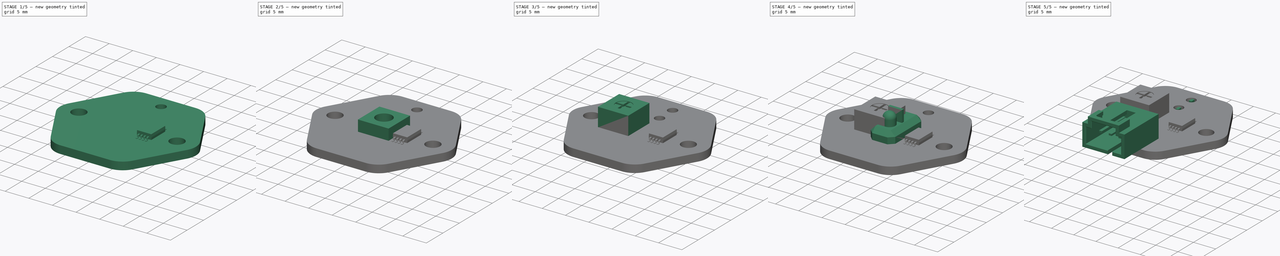
[diagram: build sequence overview — one tinted view per stage of 5, left to right]
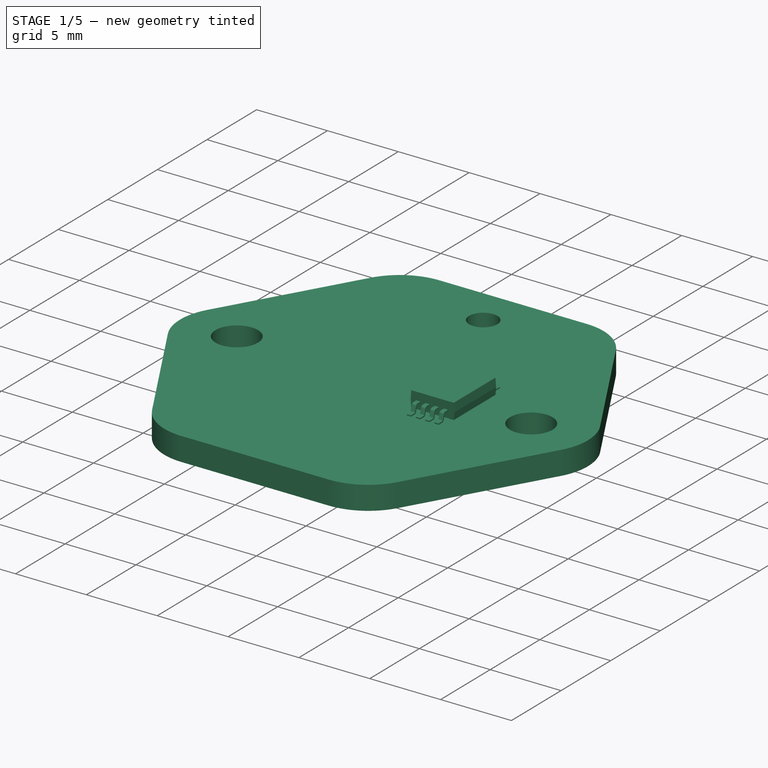
[diagram: stage 1 of 5 — iso view after this stage's code; geometry added in this stage tinted green]
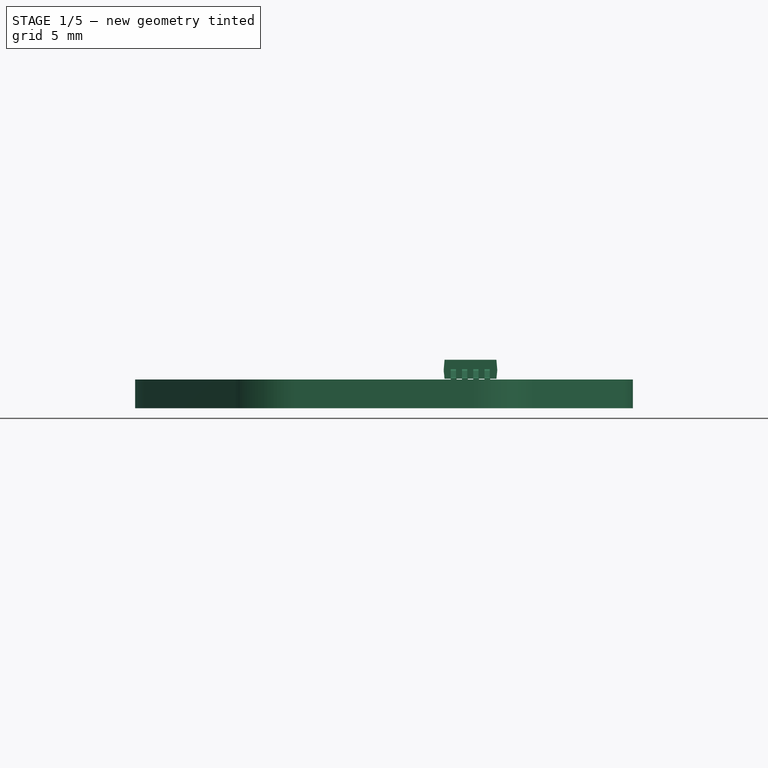
[diagram: stage 1 of 5 — front view after this stage's code; geometry added in this stage tinted green]
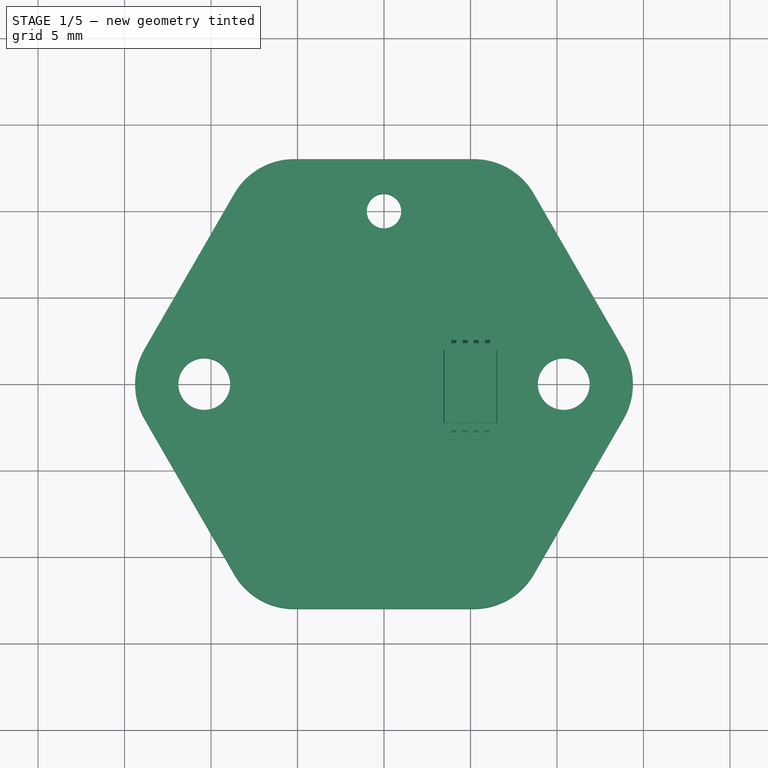
[diagram: stage 1 of 5 — top view after this stage's code; geometry added in this stage tinted green]
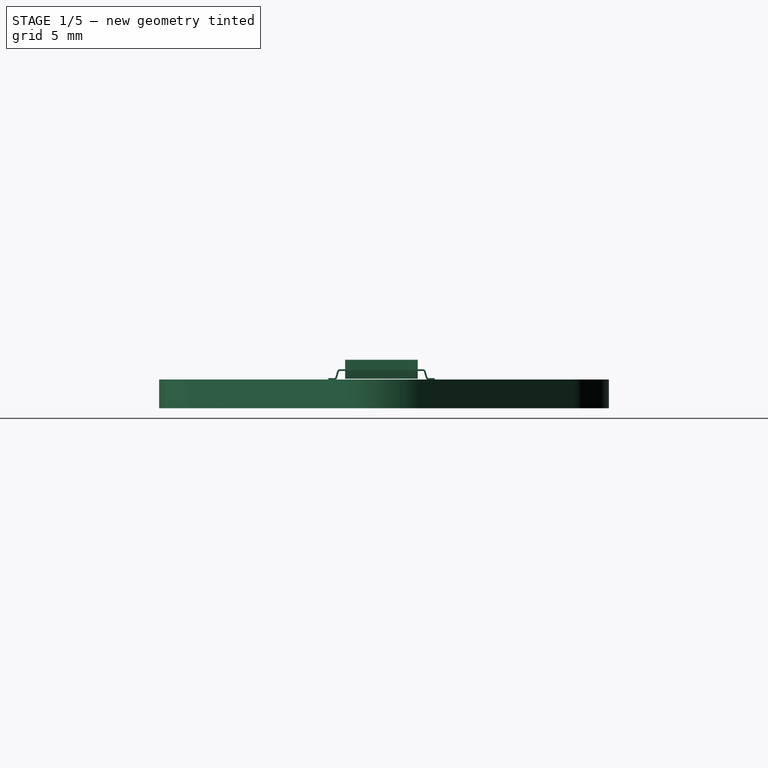
[diagram: stage 1 of 5 — right view after this stage's code; geometry added in this stage tinted green]
FCSTD DOCUMENT  (FreeCAD 0.14R3692 (Git))
Label: ZumIR_uno
License: CC-BY 3.0
LicenseURL: http://creativecommons.org/licenses/by/3.0/
objects: Part::MultiFuse×8, Part::Cut×5, Part::Box×4, Part::Cylinder×2, Sketcher::SketchObject×1, PartDesign::Pad×1, App::DocumentObjectGroup×1
note: 22 computed .brp shape members not serialized (recipe doc carries the construction recipe); baked Part::Feature solids carry a one-line shape summary decoded from their .brp

FEATURE [Sketcher::SketchObject] Sketch
  sketch-geometry (16):
    g0: LineSegment StartX=-13.8564 StartY=2 StartZ=0 EndX=-8.66025 EndY=11 EndZ=0
    g1: LineSegment StartX=-5.19615 StartY=13 StartZ=0 EndX=5.19615 EndY=13 EndZ=0
    g2: LineSegment StartX=8.66025 StartY=11 StartZ=0 EndX=13.8564 EndY=2 EndZ=0
    g3: LineSegment StartX=13.8564 StartY=-2 StartZ=0 EndX=8.66025 EndY=-11 EndZ=0
    g4: LineSegment StartX=5.19615 StartY=-13 StartZ=0 EndX=-5.19615 EndY=-13 EndZ=0
    g5: LineSegment StartX=-8.66025 StartY=-11 StartZ=0 EndX=-13.8564 EndY=-2 EndZ=0
    g6: LineSegment [constr] StartX=-5.19615 StartY=9 StartZ=0 EndX=0 EndY=0 EndZ=0
    g7: LineSegment [constr] StartX=5.19615 StartY=9 StartZ=0 EndX=0 EndY=0 EndZ=0
    g8: ArcOfCircle CenterX=5.19615 CenterY=9 CenterZ=0 NormalX=0 NormalY=0 NormalZ=1 Radius=4 StartAngle=0.523599 EndAngle=1.5708
    g9: ArcOfCircle CenterX=10.3923 CenterY=0 CenterZ=0 NormalX=0 NormalY=0 NormalZ=1 Radius=4 StartAngle=5.75959 EndAngle=6.80678
    g10: ArcOfCircle CenterX=5.19615 CenterY=-9 CenterZ=0 NormalX=0 NormalY=0 NormalZ=1 Radius=4 StartAngle=4.71239 EndAngle=5.75959
    g11: ArcOfCircle CenterX=-5.19615 CenterY=-9 CenterZ=0 NormalX=0 NormalY=0 NormalZ=1 Radius=4 StartAngle=3.66519 EndAngle=4.71239
    g12: ArcOfCircle CenterX=-10.3923 CenterY=0 CenterZ=0 NormalX=0 NormalY=0 NormalZ=1 Radius=4 StartAngle=2.61799 EndAngle=3.66519
    g13: ArcOfCircle CenterX=-5.19615 CenterY=9 CenterZ=0 NormalX=0 NormalY=0 NormalZ=1 Radius=4 StartAngle=1.5708 EndAngle=2.61799
    g14: Circle CenterX=-10.3923 CenterY=0 CenterZ=0 NormalX=0 NormalY=0 NormalZ=1 Radius=1.5
    g15: Circle CenterX=10.3923 CenterY=0 CenterZ=0 NormalX=0 NormalY=0 NormalZ=1 Radius=1.5
  constraints (38):
    c: Horizontal(g1)
    c: Horizontal(g4)
    c: Equal(g0,g1)
    c: Equal(g1,g2)
    c: Equal(g2,g3)
    c: Equal(g3,g4)
    c: Equal(g4,g5)
    c: Coincident(g6,g-1)
    c: Coincident(g7,g-1)
    c: Angle(g7,g6) = 1.0472
    c: Tangent(g1,g8)
    c: Tangent(g2,g8)
    c: Tangent(g2,g9)
    c: Tangent(g3,g9)
    c: Tangent(g3,g10)
    c: Tangent(g4,g10)
    c: Tangent(g4,g11)
    c: Tangent(g5,g11)
    c: Tangent(g5,g12)
    c: Tangent(g0,g12)
    c: Tangent(g0,g13)
    c: Tangent(g1,g13)
    c: Radius(g13) = 4
    c: Equal(g8,g13)
    c: Equal(g13,g12)
    c: Equal(g12,g11)
    c: Equal(g11,g10)
    c: Equal(g10,g9)
    c: DistanceY(g1,g4) = -26
    c: PointOnObject(g12,g-1)
    c: PointOnObject(g9,g-1)
    c: Symmetric(g12,g9,g-2)
    c: Coincident(g7,g8)
    c: Coincident(g6,g13)
    c: Coincident(g14,g12)
    c: Coincident(g15,g9)
    c: Equal(g14,g15)
    c: Radius(g14) = 1.5
FEATURE [PartDesign::Pad] Pad  label="CuerpoBase"
  Length = 1.66
  Length2 = 100
  Sketch = -> Sketch
  Type = 0
FEATURE [Part::Cylinder] Cylinder  label="Cilindro"
  Angle = 360
  Height = 10
  Placement = pos=(0,10,-2) rot=(0,0,1;0rad)
  Radius = 1
FEATURE [Part::Cut] Cut003
  Base = -> Pad
  Tool = -> Cylinder
FEATURE [Part::MultiFuse] Fusion007  label="L358"
  Placement = pos=(5,0.5,2.2) rot=(0,0,1;0rad)
  Shapes = -> [Pad]
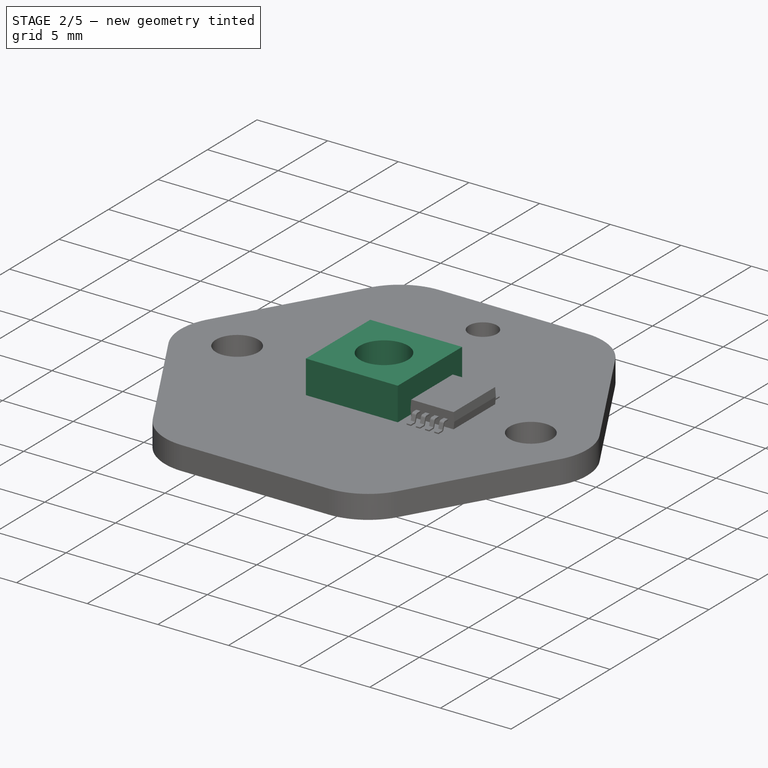
[diagram: stage 2 of 5 — iso view after this stage's code; geometry added in this stage tinted green]
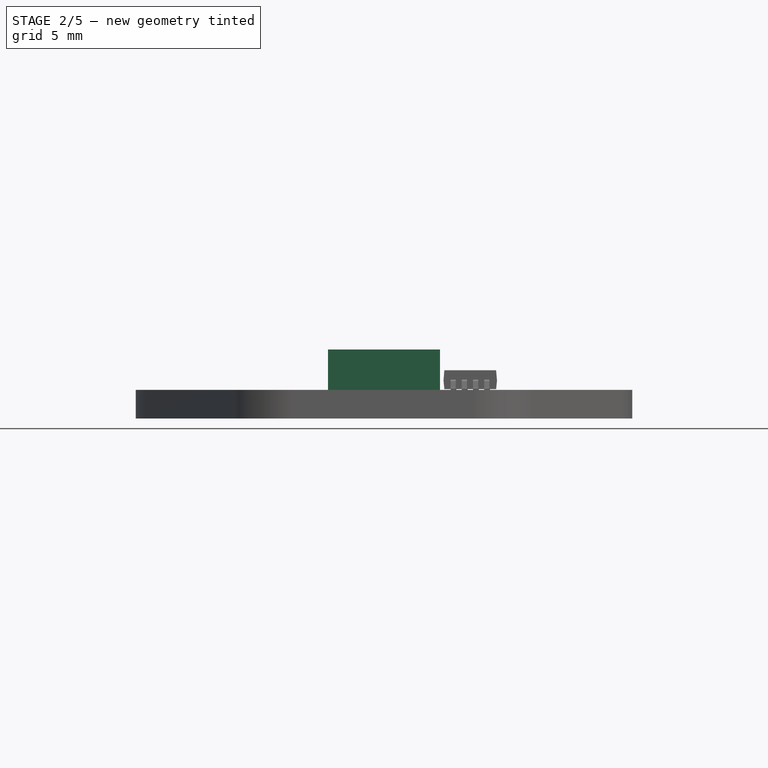
[diagram: stage 2 of 5 — front view after this stage's code; geometry added in this stage tinted green]
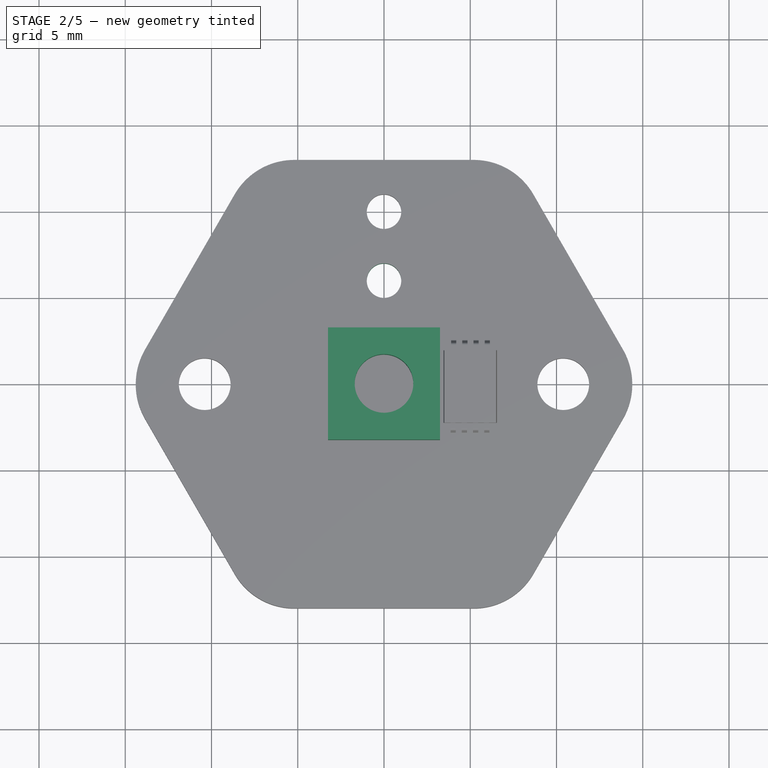
[diagram: stage 2 of 5 — top view after this stage's code; geometry added in this stage tinted green]
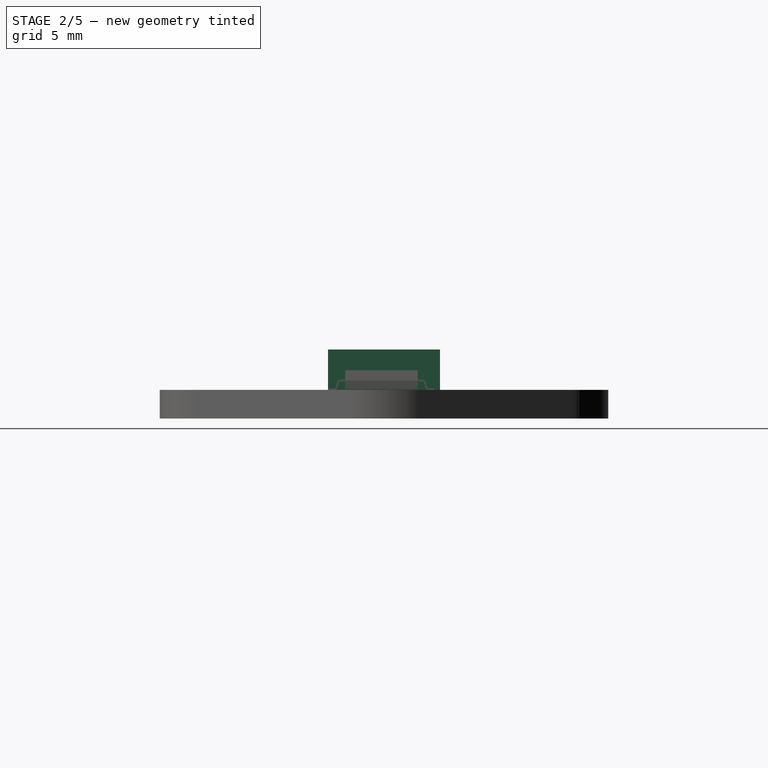
[diagram: stage 2 of 5 — right view after this stage's code; geometry added in this stage tinted green]
FEATURE [App::DocumentObjectGroup] Grupo  label="GR_Conector"
  Group = -> [Cut,Fusion001]
FEATURE [Part::Box] Box  label="Pata3"
  Height = 1.8
  Length = 0.5
  Placement = pos=(-1.5,3,-1.5) rot=(0,0,1;0rad)
  Width = 0.5
FEATURE [Part::Cut] Cut002
  Base = -> Box
FEATURE [Part::Cylinder] Cylinder001  label="Cilindro001"
  Angle = 360
  Height = 10
  Placement = pos=(0,6,-2) rot=(0,0,1;0rad)
  Radius = 1
FEATURE [Part::Cut] Cut004  label="Placa_ZumSingle"
  Base = -> Cut003
  Tool = -> Cylinder001
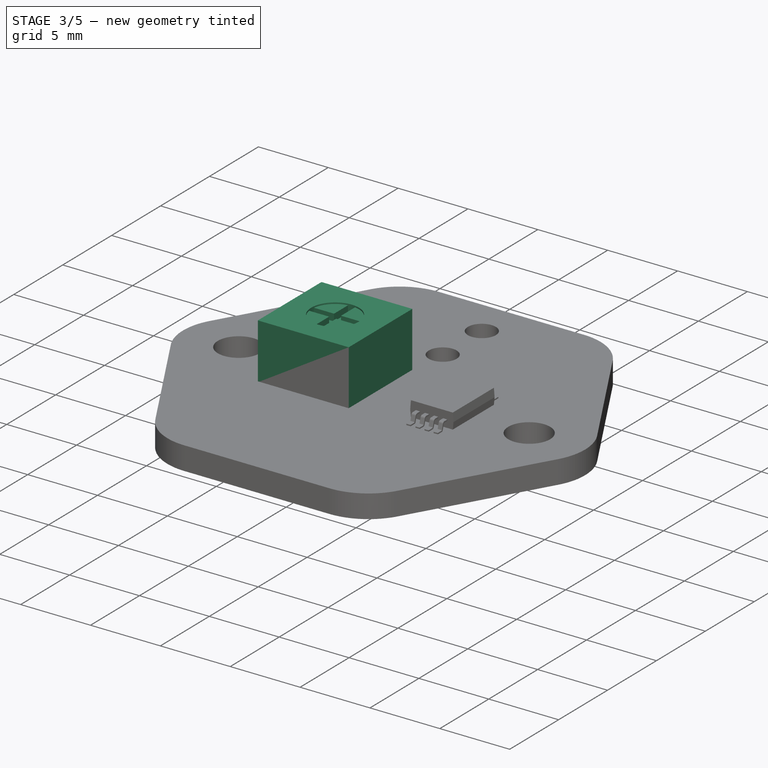
[diagram: stage 3 of 5 — iso view after this stage's code; geometry added in this stage tinted green]
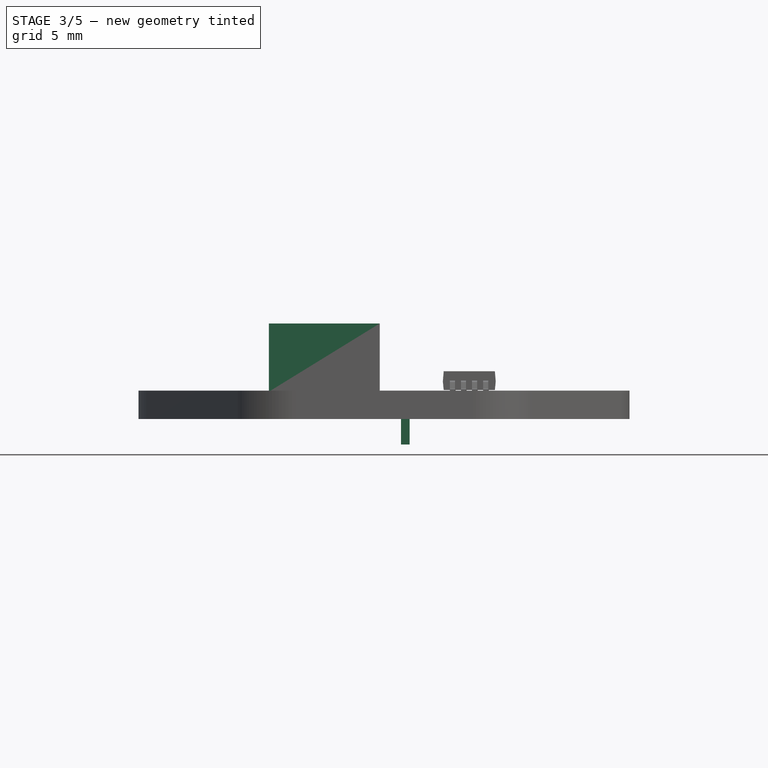
[diagram: stage 3 of 5 — front view after this stage's code; geometry added in this stage tinted green]
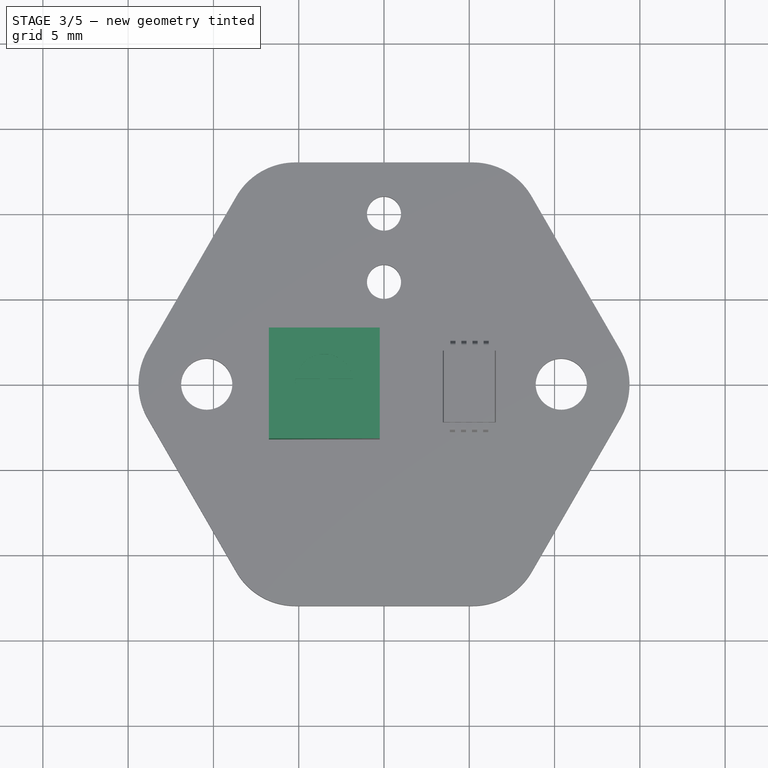
[diagram: stage 3 of 5 — top view after this stage's code; geometry added in this stage tinted green]
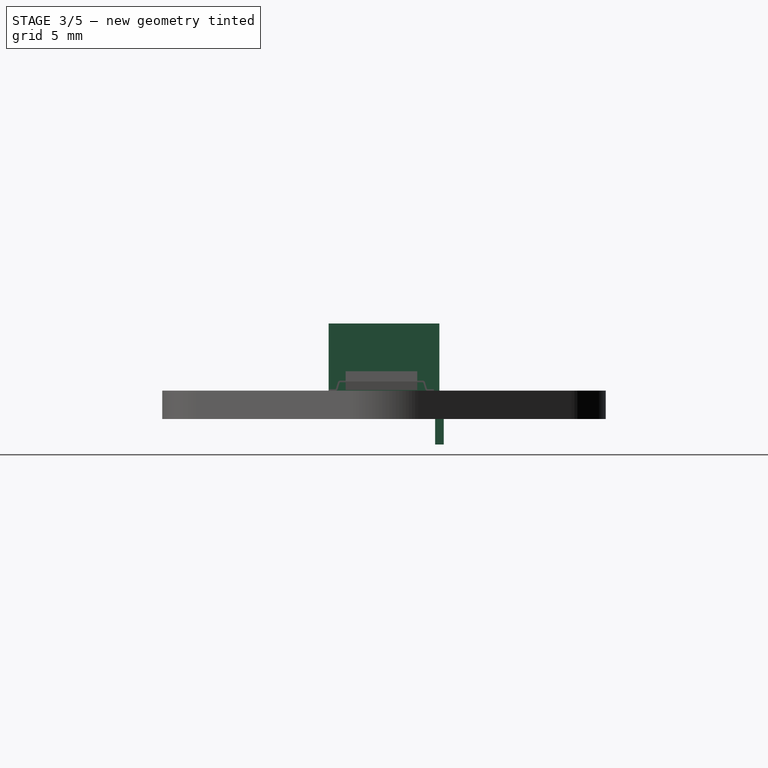
[diagram: stage 3 of 5 — right view after this stage's code; geometry added in this stage tinted green]
FEATURE [Part::Box] Box002  label="Pata4"
  Height = 1.8
  Length = 0.5
  Placement = pos=(-1.5,-3.5,-1.5) rot=(0,0,1;0rad)
  Width = 0.5
FEATURE [Part::Box] Box003  label="Pata1"
  Height = 1.8
  Length = 0.5
  Placement = pos=(1,3,-1.5) rot=(0,0,1;0rad)
  Width = 0.5
FEATURE [Part::Cut] Cut001
  Tool = -> Box002
FEATURE [Part::MultiFuse] Fusion006  label="Potenciometro001"
  Placement = pos=(-3.5,0,1.6) rot=(0,0,1;0rad)
  Shapes = -> [Cut002,Cut001]
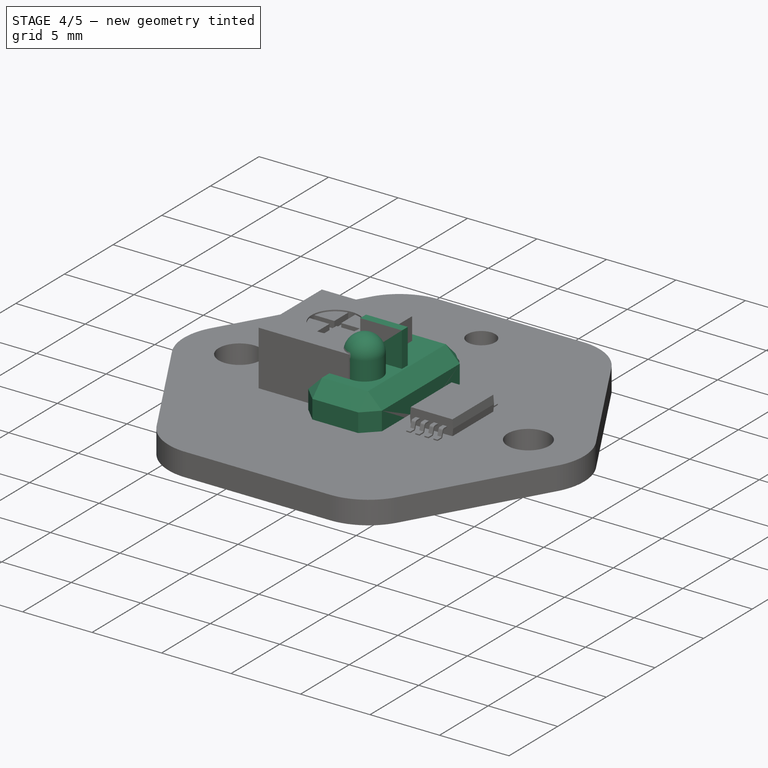
[diagram: stage 4 of 5 — iso view after this stage's code; geometry added in this stage tinted green]
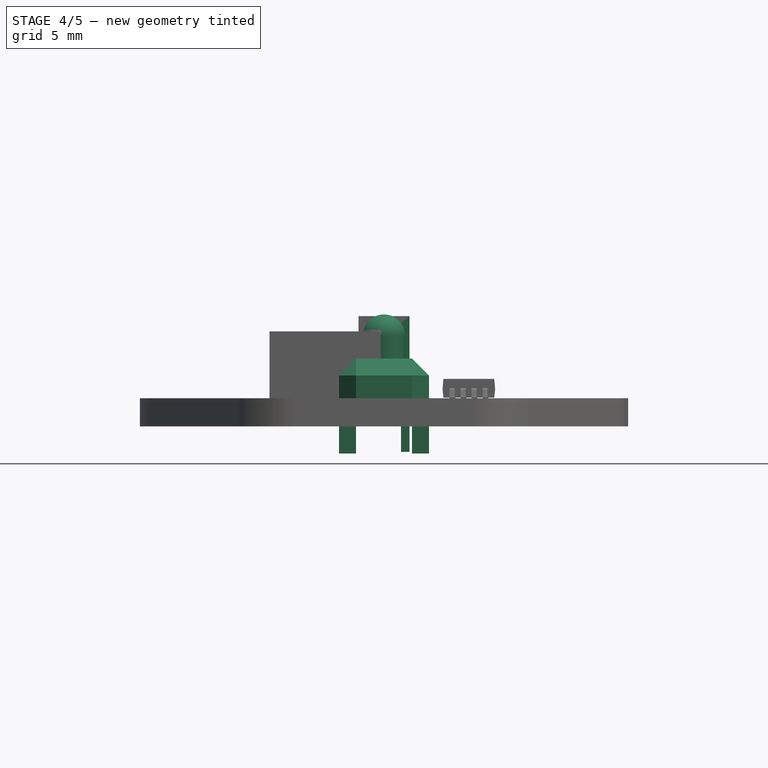
[diagram: stage 4 of 5 — front view after this stage's code; geometry added in this stage tinted green]
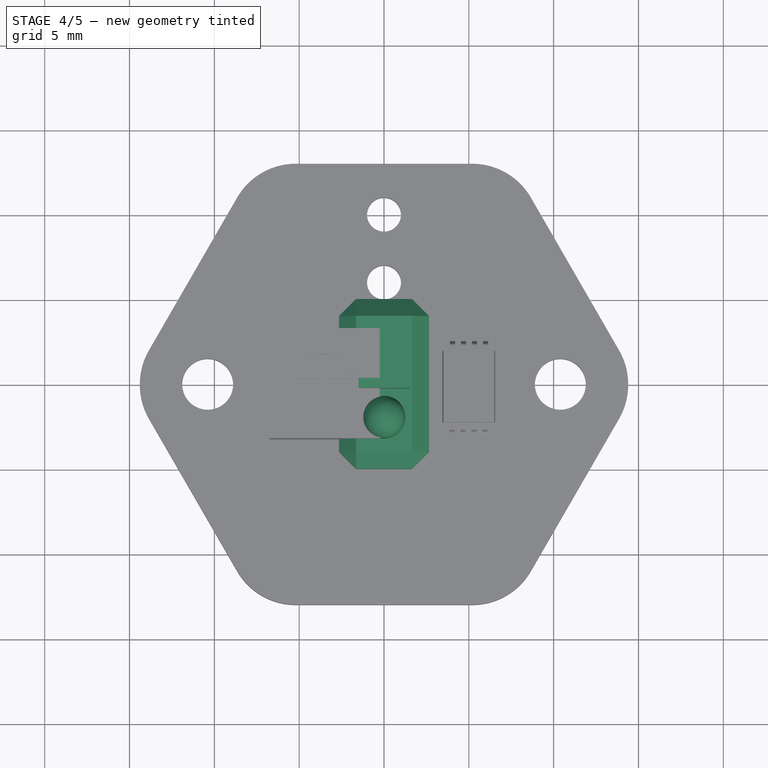
[diagram: stage 4 of 5 — top view after this stage's code; geometry added in this stage tinted green]
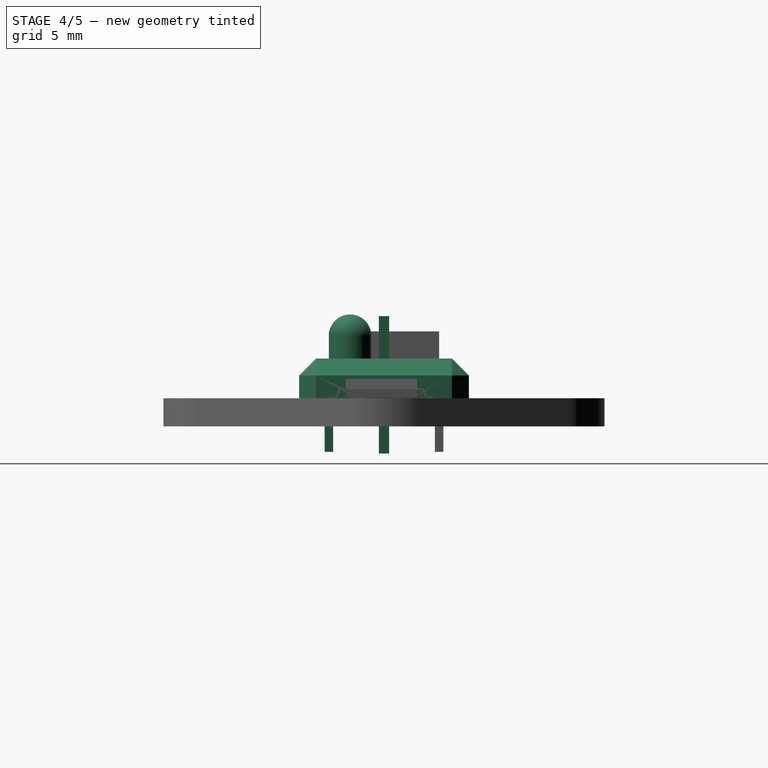
[diagram: stage 4 of 5 — right view after this stage's code; geometry added in this stage tinted green]
FEATURE [Part::MultiFuse] Fusion  label="Potenciometro"
  Placement = pos=(-2.5,0,1.67) rot=(0,0,1;0rad)
FEATURE [Part::MultiFuse] Fusion004  label="Body"
  Shapes = -> [Fusion]
FEATURE [Part::Box] Box001  label="Pata2"
  Height = 1.8
  Length = 0.5
  Placement = pos=(1,-3.5,-1.5) rot=(0,0,1;0rad)
  Width = 0.5
FEATURE [Part::MultiFuse] Fusion005  label="Emisor"
  Placement = pos=(0,-2,0.1) rot=(0,0,1;0rad)
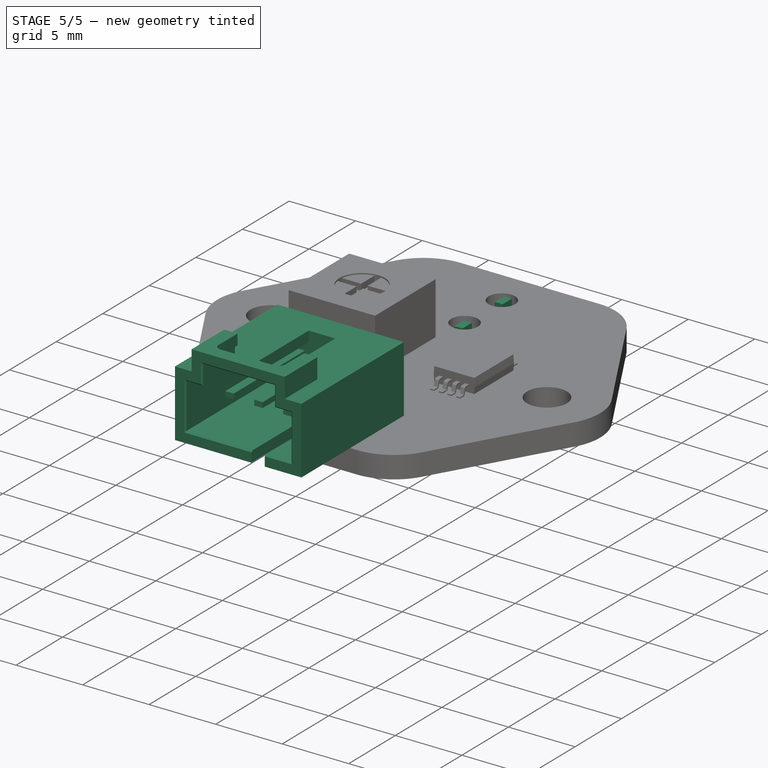
[diagram: stage 5 of 5 — iso view after this stage's code; geometry added in this stage tinted green]
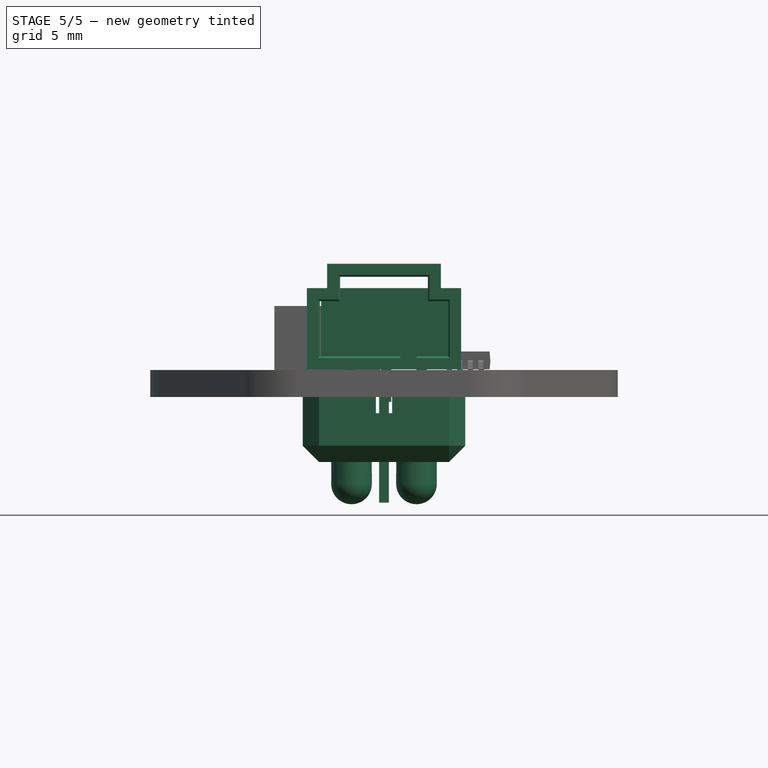
[diagram: stage 5 of 5 — front view after this stage's code; geometry added in this stage tinted green]
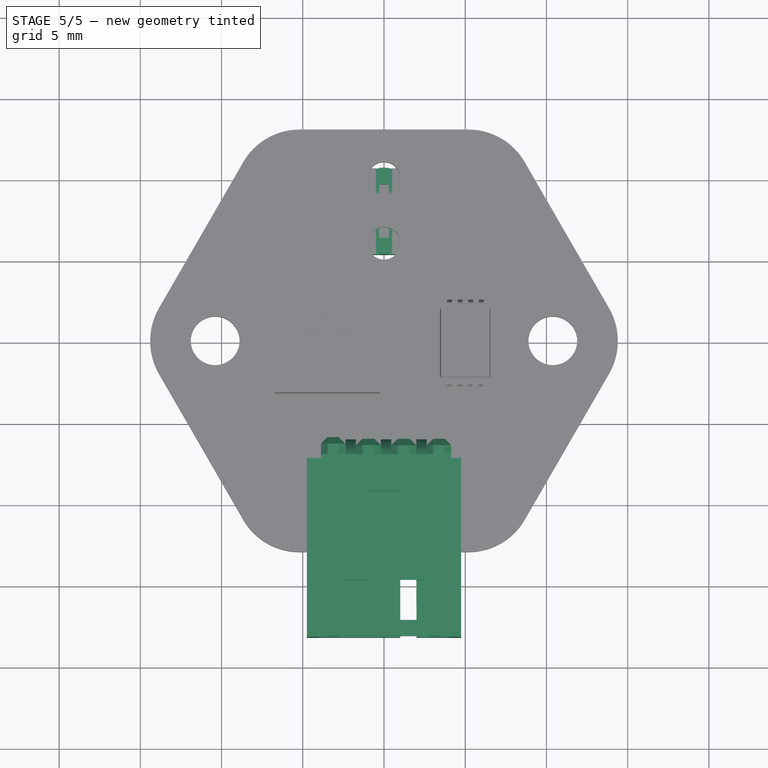
[diagram: stage 5 of 5 — top view after this stage's code; geometry added in this stage tinted green]
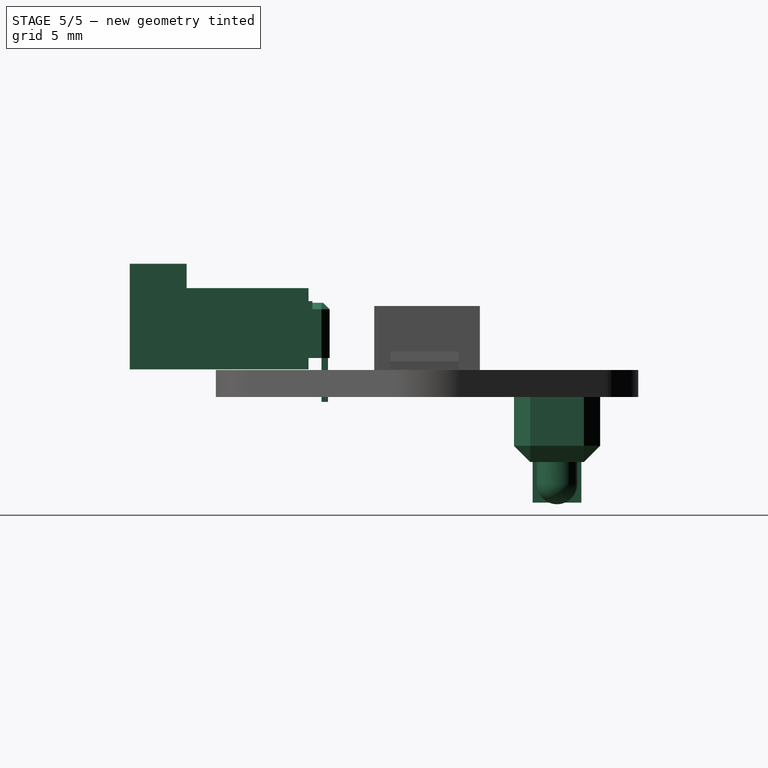
[diagram: stage 5 of 5 — right view after this stage's code; geometry added in this stage tinted green]
FEATURE [Part::MultiFuse] Fusion001  label="Conectores"
  Placement = pos=(0,0.7,0.7) rot=(0,0,1;1.5708rad)
FEATURE [Part::Cut] Cut  label="AlojaConectores"
  Placement = pos=(0,0.7,0.7) rot=(0,0,1;1.5708rad)
FEATURE [Part::MultiFuse] Fusion003  label="Receptor"
  Placement = pos=(0,2,0.1) rot=(0,0,1;0rad)
FEATURE [Part::MultiFuse] Fusion002
  Placement = pos=(0,8,0) rot=(-0.707107,0.707107,0;3.14159rad)
  Shapes = -> [Box003,Fusion005,Box001,Box002,Fusion004,Fusion003,Box]
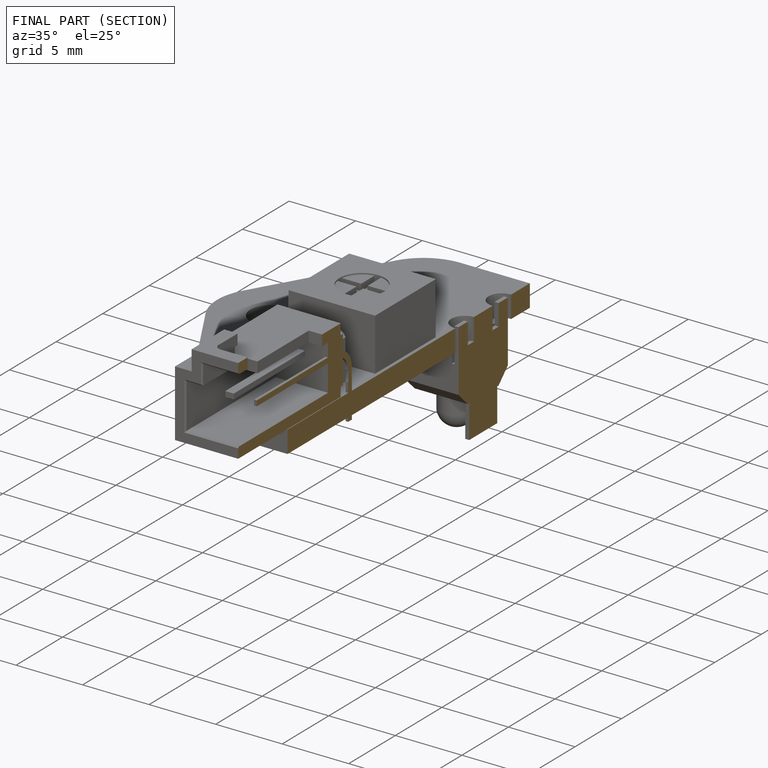
[diagram: finished part — half-section view (interior)]
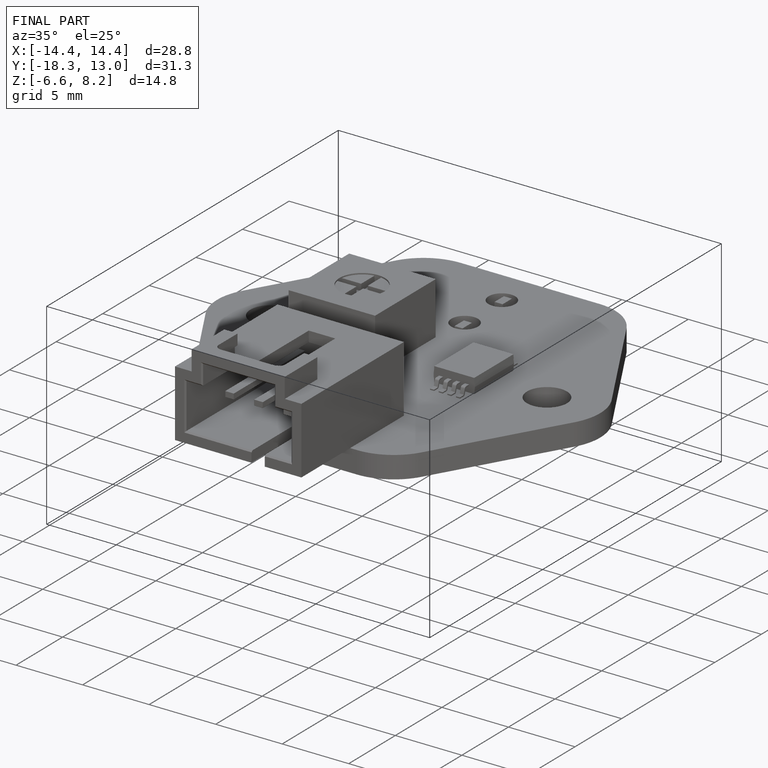
[diagram: finished part — iso view with bounding-box wireframe]
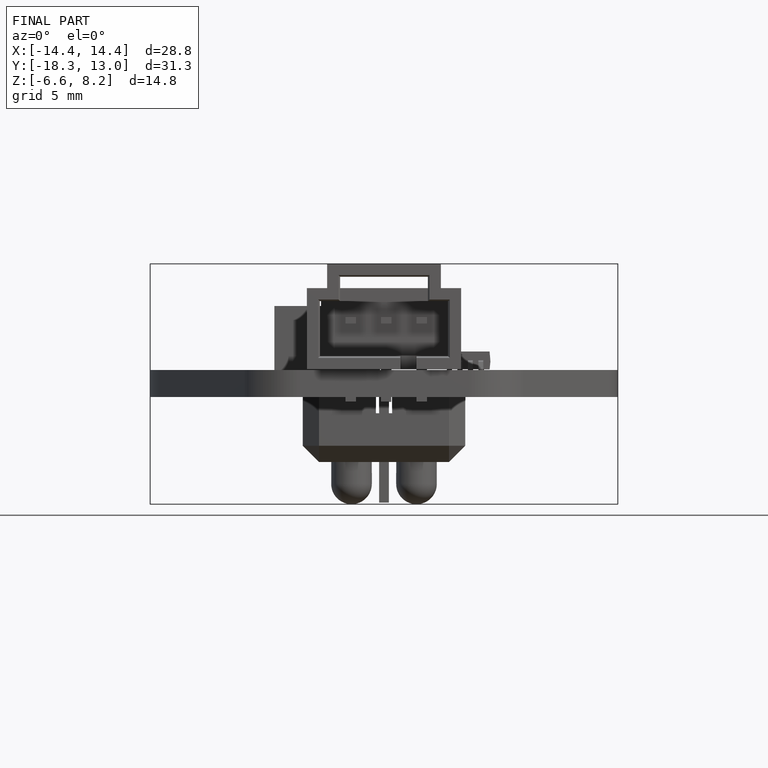
[diagram: finished part — front view with bounding-box wireframe]
